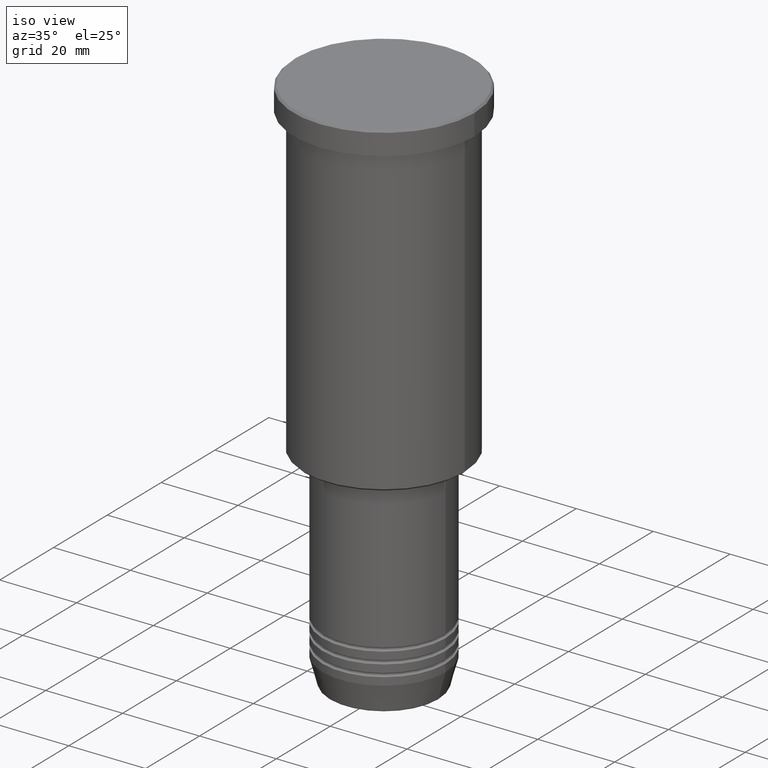
[diagram: clean part render]
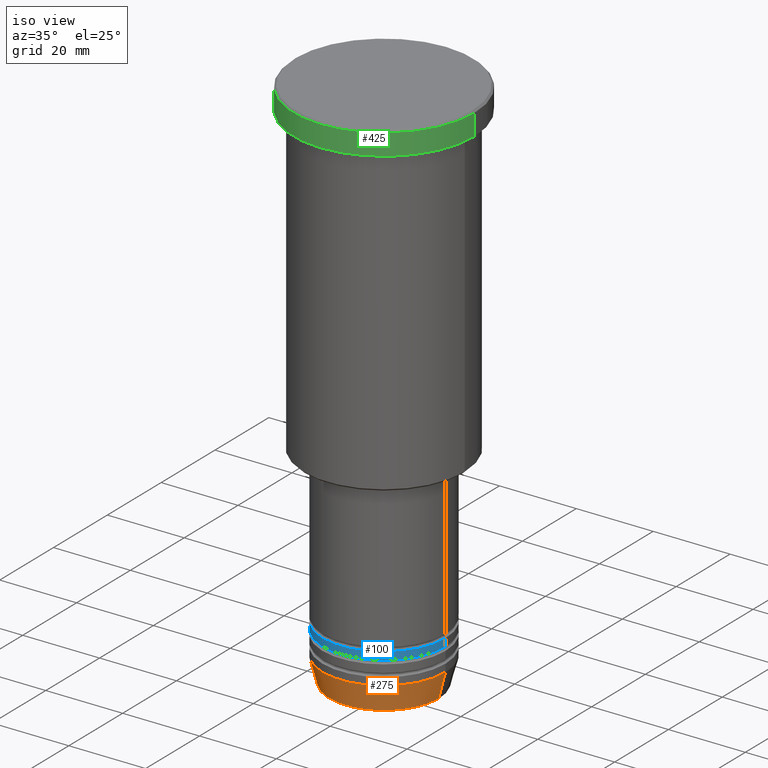
[diagram: same view with three faces highlighted in distinct colors, each labeled with its STEP entity id]
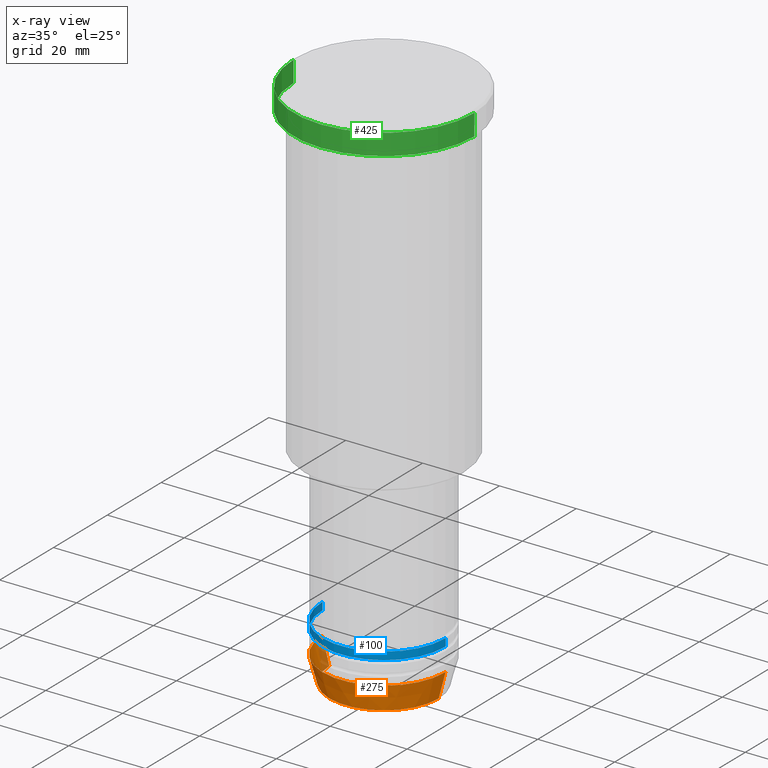
[diagram: x-ray of the same camera — body ghosted, the three highlighted faces saturated]
A machine part, iso view with three faces highlighted in distinct colors.
The next image is the same camera in x-ray (body ghosted, the three faces saturated) — at least one of them is partly hidden behind the body in this view.
Their STEP definitions:

[orange] entity #275 — the highlighted conical surface has half-angle 15 deg.
#24 = EDGE_CURVE ( 'NONE', #505, #912, #580, .T. ) ;
#50 = DIRECTION ( 'NONE',  ( -0.2588190451025213501, 3.169619151431772337E-17, 0.9659258262890680902 ) ) ;
#75 = ORIENTED_EDGE ( 'NONE', *, *, #439, .F. ) ;
#88 = DIRECTION ( 'NONE',  ( 1.000000000000000000, 0.000000000000000000, 0.000000000000000000 ) ) ;
#97 = CIRCLE ( 'NONE', #668, 14.22365507213718772 ) ;
#103 = ORIENTED_EDGE ( 'NONE', *, *, #147, .T. ) ;
#127 = DIRECTION ( 'NONE',  ( 0.2588190451025213501, 0.000000000000000000, 0.9659258262890680902 ) ) ;
#131 = CARTESIAN_POINT ( 'NONE',  ( -16.00000000000000000, 1.959434878635765131E-15, -134.0000000000000000 ) ) ;
#147 = EDGE_CURVE ( 'NONE', #801, #505, #97, .T. ) ;
#167 = EDGE_CURVE ( 'NONE', #801, #992, #696, .T. ) ;
#177 = VECTOR ( 'NONE', #127, 1000.000000000000000 ) ;
#188 = CONICAL_SURFACE ( 'NONE', #1072, 16.00000000000000000, 0.2617993877991500740 ) ;
#246 = DIRECTION ( 'NONE',  ( -0.000000000000000000, -0.000000000000000000, 1.000000000000000000 ) ) ;
#256 = CARTESIAN_POINT ( 'NONE',  ( 0.000000000000000000, 0.000000000000000000, -134.0000000000000000 ) ) ;
#275 = ADVANCED_FACE ( 'NONE', ( #1078 ), #188, .T. ) ;
#294 = CARTESIAN_POINT ( 'NONE',  ( 14.22365507213718772, 0.000000000000000000, -140.6294095225512706 ) ) ;
#307 = DIRECTION ( 'NONE',  ( -0.000000000000000000, -0.000000000000000000, 1.000000000000000000 ) ) ;
#439 = EDGE_CURVE ( 'NONE', #992, #912, #744, .T. ) ;
#477 = AXIS2_PLACEMENT_3D ( 'NONE', #1136, #307, #1125 ) ;
#505 = VERTEX_POINT ( 'NONE', #294 ) ;
#580 = LINE ( 'NONE', #946, #177 ) ;
#621 = DIRECTION ( 'NONE',  ( 1.000000000000000000, 0.000000000000000000, 0.000000000000000000 ) ) ;
#635 = DIRECTION ( 'NONE',  ( -0.000000000000000000, -0.000000000000000000, 1.000000000000000000 ) ) ;
#668 = AXIS2_PLACEMENT_3D ( 'NONE', #904, #246, #88 ) ;
#696 = LINE ( 'NONE', #131, #1148 ) ;
#732 = ORIENTED_EDGE ( 'NONE', *, *, #24, .T. ) ;
#744 = CIRCLE ( 'NONE', #477, 16.00000000000000000 ) ;
#801 = VERTEX_POINT ( 'NONE', #1122 ) ;
#867 = CARTESIAN_POINT ( 'NONE',  ( -16.00000000000000000, 1.959434878635765131E-15, -134.0000000000000000 ) ) ;
#904 = CARTESIAN_POINT ( 'NONE',  ( 0.000000000000000000, 0.000000000000000000, -140.6294095225512706 ) ) ;
#912 = VERTEX_POINT ( 'NONE', #1108 ) ;
#921 = ORIENTED_EDGE ( 'NONE', *, *, #167, .F. ) ;
#934 = EDGE_LOOP ( 'NONE', ( #921, #103, #732, #75 ) ) ;
#946 = CARTESIAN_POINT ( 'NONE',  ( 16.00000000000000000, 0.000000000000000000, -134.0000000000000000 ) ) ;
#992 = VERTEX_POINT ( 'NONE', #867 ) ;
#1072 = AXIS2_PLACEMENT_3D ( 'NONE', #256, #635, #621 ) ;
#1078 = FACE_OUTER_BOUND ( 'NONE', #934, .T. ) ;
#1108 = CARTESIAN_POINT ( 'NONE',  ( 16.00000000000000000, 0.000000000000000000, -134.0000000000000000 ) ) ;
#1122 = CARTESIAN_POINT ( 'NONE',  ( -14.22365507213718772, 1.850665122131323337E-15, -140.6294095225512706 ) ) ;
#1125 = DIRECTION ( 'NONE',  ( 1.000000000000000000, 0.000000000000000000, 0.000000000000000000 ) ) ;
#1136 = CARTESIAN_POINT ( 'NONE',  ( 0.000000000000000000, 0.000000000000000000, -134.0000000000000000 ) ) ;
#1148 = VECTOR ( 'NONE', #50, 1000.000000000000000 ) ;

[blue] entity #100 — the highlighted cylindrical surface (partial cylindrical patch) has radius 16 mm, axis along (-0, -0, 1).
#20 = CARTESIAN_POINT ( 'NONE',  ( 0.000000000000000000, 0.000000000000000000, 0.000000000000000000 ) ) ;
#99 = ORIENTED_EDGE ( 'NONE', *, *, #592, .T. ) ;
#100 = ADVANCED_FACE ( 'NONE', ( #253 ), #598, .T. ) ;
#104 = CARTESIAN_POINT ( 'NONE',  ( 0.000000000000000000, 0.000000000000000000, -125.9999999999999716 ) ) ;
#206 = CARTESIAN_POINT ( 'NONE',  ( -16.00000000000000000, 1.959434878635765131E-15, 0.000000000000000000 ) ) ;
#214 = LINE ( 'NONE', #206, #272 ) ;
#225 = DIRECTION ( 'NONE',  ( 1.000000000000000000, 0.000000000000000000, 0.000000000000000000 ) ) ;
#231 = DIRECTION ( 'NONE',  ( -0.000000000000000000, -0.000000000000000000, 1.000000000000000000 ) ) ;
#248 = ORIENTED_EDGE ( 'NONE', *, *, #800, .F. ) ;
#253 = FACE_OUTER_BOUND ( 'NONE', #1107, .T. ) ;
#272 = VECTOR ( 'NONE', #285, 1000.000000000000000 ) ;
#285 = DIRECTION ( 'NONE',  ( -0.000000000000000000, -0.000000000000000000, 1.000000000000000000 ) ) ;
#286 = CARTESIAN_POINT ( 'NONE',  ( 16.00000000000000000, 0.000000000000000000, -125.9999999999999716 ) ) ;
#314 = DIRECTION ( 'NONE',  ( -0.000000000000000000, -0.000000000000000000, 1.000000000000000000 ) ) ;
#316 = CARTESIAN_POINT ( 'NONE',  ( -16.00000000000000000, 1.959434878635765131E-15, -125.9999999999999716 ) ) ;
#364 = CIRCLE ( 'NONE', #843, 16.00000000000000000 ) ;
#465 = VERTEX_POINT ( 'NONE', #286 ) ;
#493 = CARTESIAN_POINT ( 'NONE',  ( 16.00000000000000000, 0.000000000000000000, -127.9999999999999716 ) ) ;
#503 = CARTESIAN_POINT ( 'NONE',  ( 0.000000000000000000, 0.000000000000000000, -127.9999999999999716 ) ) ;
#592 = EDGE_CURVE ( 'NONE', #734, #1062, #611, .T. ) ;
#598 = CYLINDRICAL_SURFACE ( 'NONE', #925, 16.00000000000000000 ) ;
#611 = CIRCLE ( 'NONE', #722, 16.00000000000000000 ) ;
#616 = VERTEX_POINT ( 'NONE', #316 ) ;
#639 = CARTESIAN_POINT ( 'NONE',  ( -16.00000000000000000, 1.959434878635765131E-15, -127.9999999999999716 ) ) ;
#654 = CARTESIAN_POINT ( 'NONE',  ( 16.00000000000000000, 0.000000000000000000, 0.000000000000000000 ) ) ;
#722 = AXIS2_PLACEMENT_3D ( 'NONE', #503, #231, #857 ) ;
#734 = VERTEX_POINT ( 'NONE', #639 ) ;
#741 = DIRECTION ( 'NONE',  ( 1.000000000000000000, 0.000000000000000000, 0.000000000000000000 ) ) ;
#745 = DIRECTION ( 'NONE',  ( -0.000000000000000000, -0.000000000000000000, 1.000000000000000000 ) ) ;
#800 = EDGE_CURVE ( 'NONE', #734, #616, #214, .T. ) ;
#809 = DIRECTION ( 'NONE',  ( -0.000000000000000000, -0.000000000000000000, 1.000000000000000000 ) ) ;
#826 = VECTOR ( 'NONE', #809, 1000.000000000000000 ) ;
#843 = AXIS2_PLACEMENT_3D ( 'NONE', #104, #745, #741 ) ;
#857 = DIRECTION ( 'NONE',  ( 1.000000000000000000, 0.000000000000000000, 0.000000000000000000 ) ) ;
#882 = ORIENTED_EDGE ( 'NONE', *, *, #1176, .T. ) ;
#901 = EDGE_CURVE ( 'NONE', #616, #465, #364, .T. ) ;
#913 = LINE ( 'NONE', #654, #826 ) ;
#925 = AXIS2_PLACEMENT_3D ( 'NONE', #20, #314, #225 ) ;
#1062 = VERTEX_POINT ( 'NONE', #493 ) ;
#1094 = ORIENTED_EDGE ( 'NONE', *, *, #901, .F. ) ;
#1107 = EDGE_LOOP ( 'NONE', ( #248, #99, #882, #1094 ) ) ;
#1176 = EDGE_CURVE ( 'NONE', #1062, #465, #913, .T. ) ;

[green] entity #425 — the highlighted cylindrical surface (partial cylindrical patch) has radius 23.5 mm, axis along (-0, -0, 1).
#6 = CIRCLE ( 'NONE', #27, 23.50000000000000000 ) ;
#27 = AXIS2_PLACEMENT_3D ( 'NONE', #754, #292, #484 ) ;
#36 = ORIENTED_EDGE ( 'NONE', *, *, #1050, .T. ) ;
#38 = CARTESIAN_POINT ( 'NONE',  ( 0.000000000000000000, 0.000000000000000000, 0.000000000000000000 ) ) ;
#115 = CYLINDRICAL_SURFACE ( 'NONE', #268, 23.50000000000000000 ) ;
#154 = EDGE_LOOP ( 'NONE', ( #196, #330, #36, #818 ) ) ;
#174 = CIRCLE ( 'NONE', #462, 23.50000000000000000 ) ;
#195 = CARTESIAN_POINT ( 'NONE',  ( -23.50000000000000000, 2.877919977996280320E-15, -0.4999999999999726885 ) ) ;
#196 = ORIENTED_EDGE ( 'NONE', *, *, #220, .F. ) ;
#199 = VERTEX_POINT ( 'NONE', #794 ) ;
#220 = EDGE_CURVE ( 'NONE', #956, #786, #356, .T. ) ;
#237 = LINE ( 'NONE', #601, #939 ) ;
#268 = AXIS2_PLACEMENT_3D ( 'NONE', #38, #948, #401 ) ;
#279 = DIRECTION ( 'NONE',  ( -0.000000000000000000, -0.000000000000000000, 1.000000000000000000 ) ) ;
#292 = DIRECTION ( 'NONE',  ( -0.000000000000000000, -0.000000000000000000, 1.000000000000000000 ) ) ;
#330 = ORIENTED_EDGE ( 'NONE', *, *, #485, .T. ) ;
#356 = LINE ( 'NONE', #556, #610 ) ;
#401 = DIRECTION ( 'NONE',  ( 1.000000000000000000, 0.000000000000000000, 0.000000000000000000 ) ) ;
#425 = ADVANCED_FACE ( 'NONE', ( #564 ), #115, .T. ) ;
#444 = CARTESIAN_POINT ( 'NONE',  ( 0.000000000000000000, 0.000000000000000000, -0.4999999999999726885 ) ) ;
#462 = AXIS2_PLACEMENT_3D ( 'NONE', #444, #739, #1183 ) ;
#484 = DIRECTION ( 'NONE',  ( 1.000000000000000000, 0.000000000000000000, 0.000000000000000000 ) ) ;
#485 = EDGE_CURVE ( 'NONE', #956, #708, #6, .T. ) ;
#556 = CARTESIAN_POINT ( 'NONE',  ( -23.50000000000000000, 2.877919977996280320E-15, 0.000000000000000000 ) ) ;
#564 = FACE_OUTER_BOUND ( 'NONE', #154, .T. ) ;
#601 = CARTESIAN_POINT ( 'NONE',  ( 23.50000000000000000, 0.000000000000000000, 0.000000000000000000 ) ) ;
#610 = VECTOR ( 'NONE', #279, 1000.000000000000000 ) ;
#675 = CARTESIAN_POINT ( 'NONE',  ( -23.50000000000000000, 2.877919977996280320E-15, -5.999999999999994671 ) ) ;
#708 = VERTEX_POINT ( 'NONE', #890 ) ;
#739 = DIRECTION ( 'NONE',  ( 0.000000000000000000, 0.000000000000000000, -1.000000000000000000 ) ) ;
#754 = CARTESIAN_POINT ( 'NONE',  ( 0.000000000000000000, 0.000000000000000000, -5.999999999999994671 ) ) ;
#786 = VERTEX_POINT ( 'NONE', #195 ) ;
#794 = CARTESIAN_POINT ( 'NONE',  ( 23.50000000000000000, 0.000000000000000000, -0.4999999999999726885 ) ) ;
#818 = ORIENTED_EDGE ( 'NONE', *, *, #1169, .T. ) ;
#874 = DIRECTION ( 'NONE',  ( -0.000000000000000000, -0.000000000000000000, 1.000000000000000000 ) ) ;
#890 = CARTESIAN_POINT ( 'NONE',  ( 23.50000000000000000, 0.000000000000000000, -5.999999999999994671 ) ) ;
#939 = VECTOR ( 'NONE', #874, 1000.000000000000000 ) ;
#948 = DIRECTION ( 'NONE',  ( -0.000000000000000000, -0.000000000000000000, 1.000000000000000000 ) ) ;
#956 = VERTEX_POINT ( 'NONE', #675 ) ;
#1050 = EDGE_CURVE ( 'NONE', #708, #199, #237, .T. ) ;
#1169 = EDGE_CURVE ( 'NONE', #199, #786, #174, .T. ) ;
#1183 = DIRECTION ( 'NONE',  ( 1.000000000000000000, 0.000000000000000000, 0.000000000000000000 ) ) ;